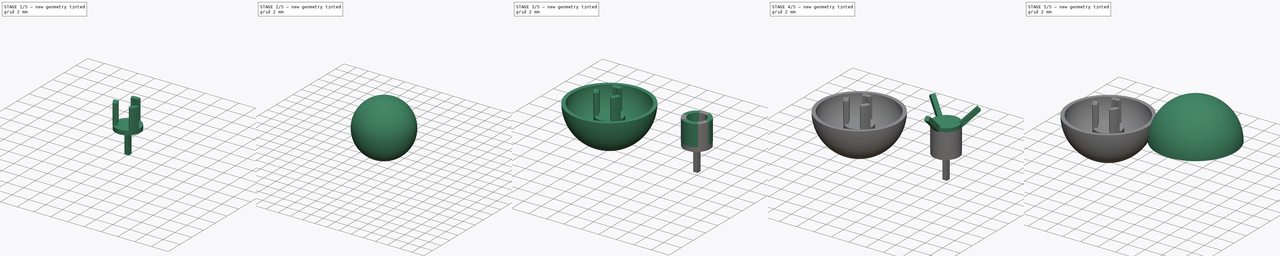
[diagram: build sequence overview — one tinted view per stage of 5, left to right]
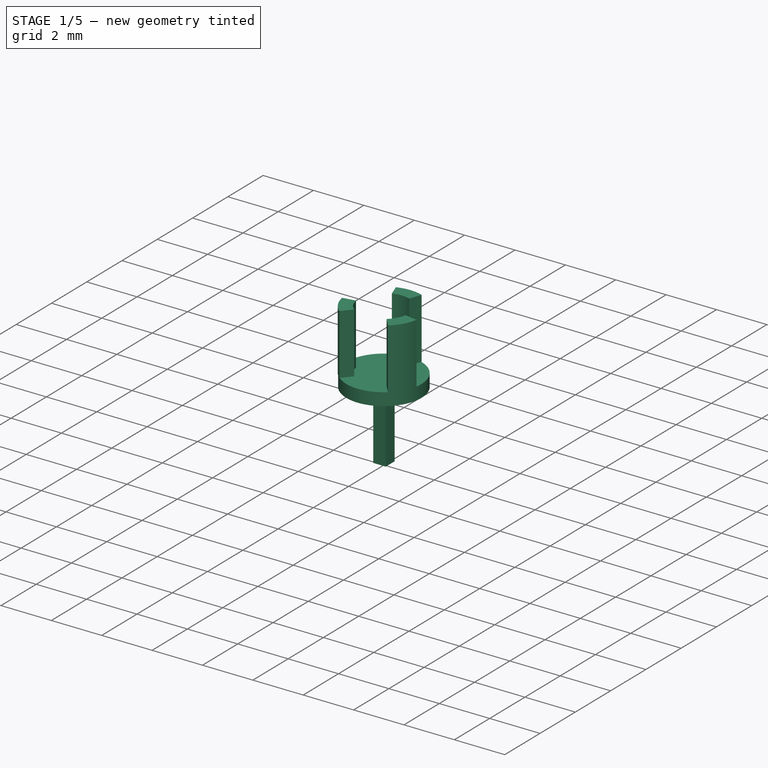
[diagram: stage 1 of 5 — iso view after this stage's code; geometry added in this stage tinted green]
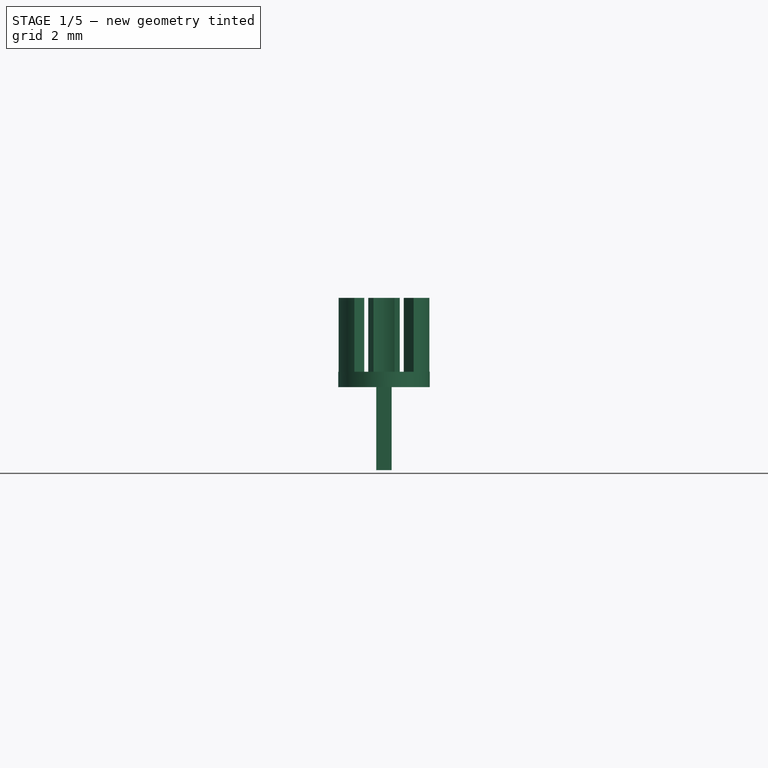
[diagram: stage 1 of 5 — front view after this stage's code; geometry added in this stage tinted green]
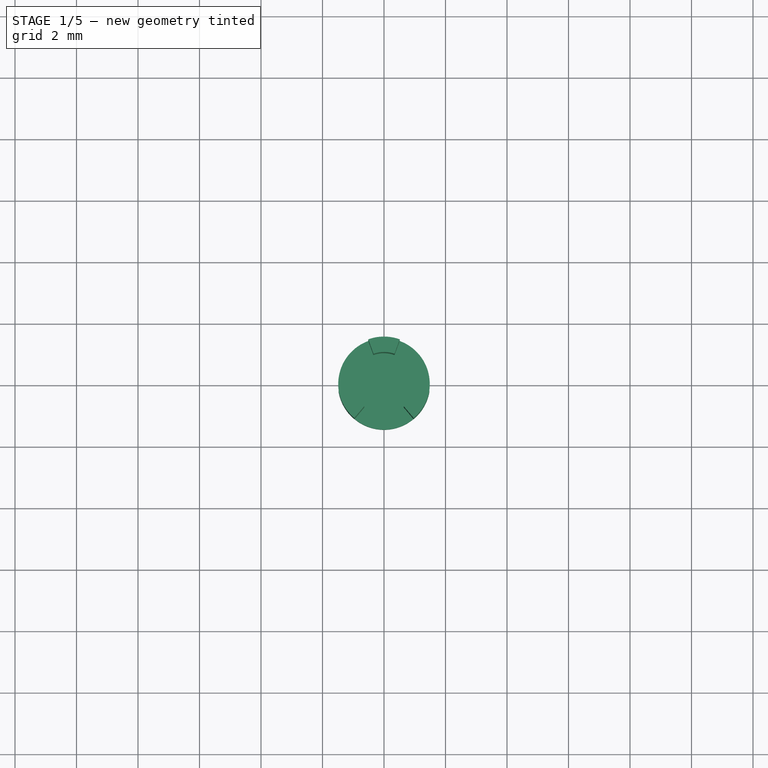
[diagram: stage 1 of 5 — top view after this stage's code; geometry added in this stage tinted green]
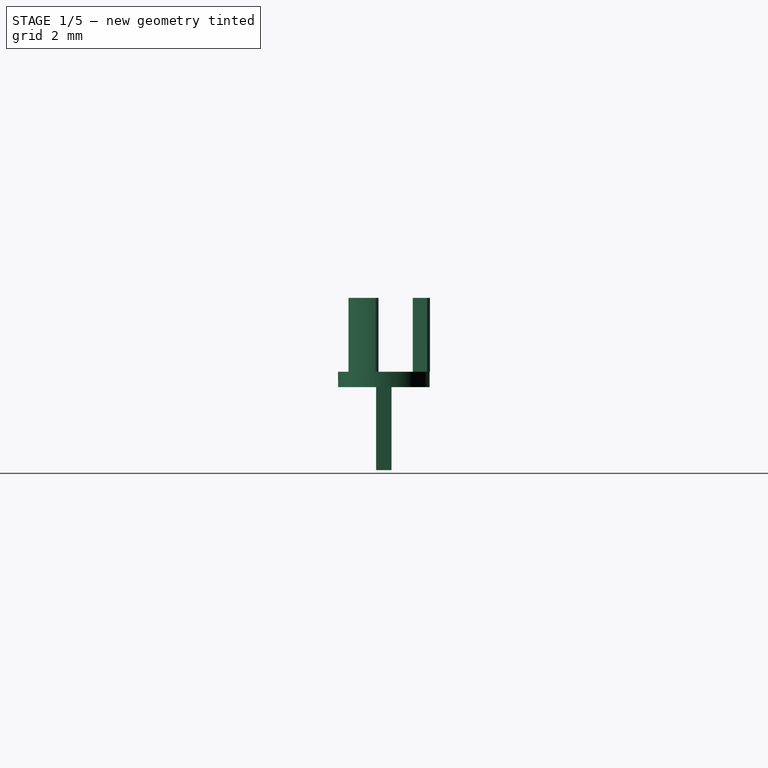
[diagram: stage 1 of 5 — right view after this stage's code; geometry added in this stage tinted green]
FCSTD DOCUMENT  (FreeCAD 0.19R24344 (Git))
Label: Sphere-10mm
Comment: First attempt for 10mm Spheres with Magnets inside.
License: Creative Commons Attribution-NonCommercial-ShareAlike
LicenseURL: http://creativecommons.org/licenses/by-nc-sa/4.0/
objects: Sketcher::SketchObject×14, PartDesign::Pad×10, PartDesign::Body×3, Part::FeaturePython×3, PartDesign::ShapeBinder×3, PartDesign::Pocket×3, Part::Sphere×2, Part::MultiFuse×2, Part::Cut×1, Part::Feature×1, App::DocumentObjectGroup×1
note: 55 computed .brp shape members not serialized (recipe doc carries the construction recipe); baked Part::Feature solids carry a one-line shape summary decoded from their .brp

FEATURE [PartDesign::Body] Body001
  Group = -> [Sketch001,Pad,Sketch002,Pad001,Sketch003,Pad002,CopyRuled_Surface,Sketch004,Pad003,CopyRuled_Surface001,Sketch005,Pad004,CopyRuled_Surface002,Sketch006,Pad005,Sketch007,Pad006,Sketch008,Pocket,Sketch016,Pocket001]
  Origin = -> Origin001
  Tip = -> Pocket001
FEATURE [Sketcher::SketchObject] Sketch009
  FullyConstrained = true
  MapMode = 5
  Support = -> [XY_Plane002]
  sketch-geometry (2):
    g0: Circle CenterX=0 CenterY=0 CenterZ=0 NormalX=0 NormalY=0 NormalZ=1 AngleXU=0 Radius=1
    g1: Circle CenterX=0 CenterY=0 CenterZ=0 NormalX=0 NormalY=0 NormalZ=1 AngleXU=0 Radius=1.5
  constraints (4):
    c: Coincident(g0,g-1)
    c: Coincident(g1,g0)
    c: Diameter(g0) = 2
    c: Diameter(g1) = 3
FEATURE [PartDesign::Pad] Pad008
  Direction = (1,1,1)
  Length = 2.4
  Length2 = 100
  Midplane = true
  Profile = -> Sketch009
  Type = 0
FEATURE [Sketcher::SketchObject] Sketch010
  ExternalGeometry = -> [Pad008]
  FullyConstrained = false
  MapMode = 5
  Placement = pos=(0,0,-1.2) rot=(1,0,0;3.14159rad)
  Support = -> [Pad008]
  sketch-geometry (1):
    g0: Circle CenterX=0 CenterY=0 CenterZ=0 NormalX=0 NormalY=0 NormalZ=1 AngleXU=0 Radius=1.48824
  constraints (1):
    c: Tangent(g0,g-3) = -1.5708
FEATURE [PartDesign::Pad] Pad009
  BaseFeature = -> Pad008
  Direction = (1,1,1)
  Length = 0.5
  Length2 = 100
  Profile = -> Sketch010
  Type = 0
FEATURE [Sketcher::SketchObject] Sketch017
  ExternalGeometry = -> [Pad009]
  FullyConstrained = true
  MapMode = 5
  Placement = pos=(0,0,0) rot=(0.57735,0.57735,0.57735;2.0944rad)
  Support = -> [YZ_Plane002]
  sketch-geometry (4):
    g0: LineSegment StartX=-0.25 StartY=-1.7 StartZ=0 EndX=0.25 EndY=-1.7 EndZ=0
    g1: LineSegment StartX=0.25 StartY=-1.7 StartZ=0 EndX=0.25 EndY=-4.4 EndZ=0
    g2: LineSegment StartX=0.25 StartY=-4.4 StartZ=0 EndX=-0.25 EndY=-4.4 EndZ=0
    g3: LineSegment StartX=-0.25 StartY=-4.4 StartZ=0 EndX=-0.25 EndY=-1.7 EndZ=0
  constraints (11):
    c: Coincident(g0,g1)
    c: Coincident(g1,g2)
    c: Coincident(g2,g3)
    c: Coincident(g3,g0)
    c: Horizontal(g0)
    c: Vertical(g1)
    c: Vertical(g3)
    c: PointOnObject(g0,g-3)
    c: DistanceY(g2,g-1) = 4.4
    c: Distance(g2) = 0.5
    c: Symmetric(g1,g2,g-2)
FEATURE [PartDesign::Pad] Pad007
  BaseFeature = -> Pad009
  Direction = (1,1,1)
  Length = 0.5
  Length2 = 100
  Midplane = true
  Profile = -> Sketch017
  Type = 0
FEATURE [Sketcher::SketchObject] Sketch015
  FullyConstrained = true
  MapMode = 5
  Placement = pos=(0,0,-1.2) rot=(0,0,1;0rad)
  Support = -> [Pad009]
  sketch-geometry (12):
    g0: LineSegment StartX=0 StartY=0 StartZ=0 EndX=2.95442 EndY=-0.520945 EndZ=0
    g1: LineSegment StartX=2.95442 StartY=-0.520945 StartZ=0 EndX=1.02606 EndY=2.81908 EndZ=0
    g2: LineSegment StartX=1.02606 StartY=2.81908 StartZ=0 EndX=0 EndY=0 EndZ=0
    g3: LineSegment StartX=0 StartY=0 StartZ=0 EndX=9e-16 EndY=-4 EndZ=0
    g4: LineSegment StartX=0 StartY=0 StartZ=0 EndX=-3.4641 EndY=2 EndZ=0
    g5: LineSegment StartX=0 StartY=0 StartZ=0 EndX=-1.02606 EndY=2.81908 EndZ=0
    g6: LineSegment StartX=-1.02606 StartY=2.81908 StartZ=0 EndX=-2.95442 EndY=-0.520945 EndZ=0
    g7: LineSegment StartX=-2.95442 StartY=-0.520945 StartZ=0 EndX=0 EndY=0 EndZ=0
    g8: LineSegment StartX=0 StartY=0 StartZ=0 EndX=-1.92836 EndY=-2.29813 EndZ=0
    g9: LineSegment StartX=-1.92836 StartY=-2.29813 StartZ=0 EndX=1.92836 EndY=-2.29813 EndZ=0
    g10: LineSegment StartX=1.92836 StartY=-2.29813 StartZ=0 EndX=0 EndY=0 EndZ=0
    g11: LineSegment StartX=0 StartY=0 StartZ=0 EndX=3.4641 EndY=2 EndZ=0
  constraints (33):
    c: Coincident(g0,g1)
    c: Coincident(g1,g2)
    c: Coincident(g2,g0)
    c: Equal(g0,g2)
    c: Coincident(g2,g-1)
    c: Distance(g0,g0) = 3
    c: Coincident(g3,g0)
    c: Coincident(g4,g0)
    c: Angle(g-2,g4) = 1.0472
    c: Angle(g3,g-2) = 3.14159
    c: Distance(g4,g0) = 4
    c: Distance(g0,g3) = 4
    c: Coincident(g5,g6)
    c: Coincident(g6,g7)
    c: Coincident(g7,g5)
    c: Equal(g5,g7)
    c: Coincident(g7,g0)
    c: Coincident(g8,g9)
    c: Coincident(g9,g10)
    c: Coincident(g10,g8)
    c: Equal(g8,g10)
    c: Coincident(g10,g0)
    c: Distance(g9,g0) = 3
    c: Distance(g5,g0) = 3
    c: Coincident(g11,g0)
    c: Distance(g11,g0) = 4
    c: Angle(g11,g-2) = 1.0472
    c: Angle(g0,g2) = 1.39626
    c: Angle(g5,g7) = 1.39626
    c: Angle(g8,g10) = 1.39626
    c: Angle(g8,g3) = 0.698132
    c: Angle(g0,g11) = 0.698132
    c: Angle(g5,g4) = 0.698132
FEATURE [PartDesign::Pocket] Pocket002
  BaseFeature = -> Pad007
  Length = 5
  Length2 = 100
  Profile = -> Sketch015
  Reversed = true
  Type = 0
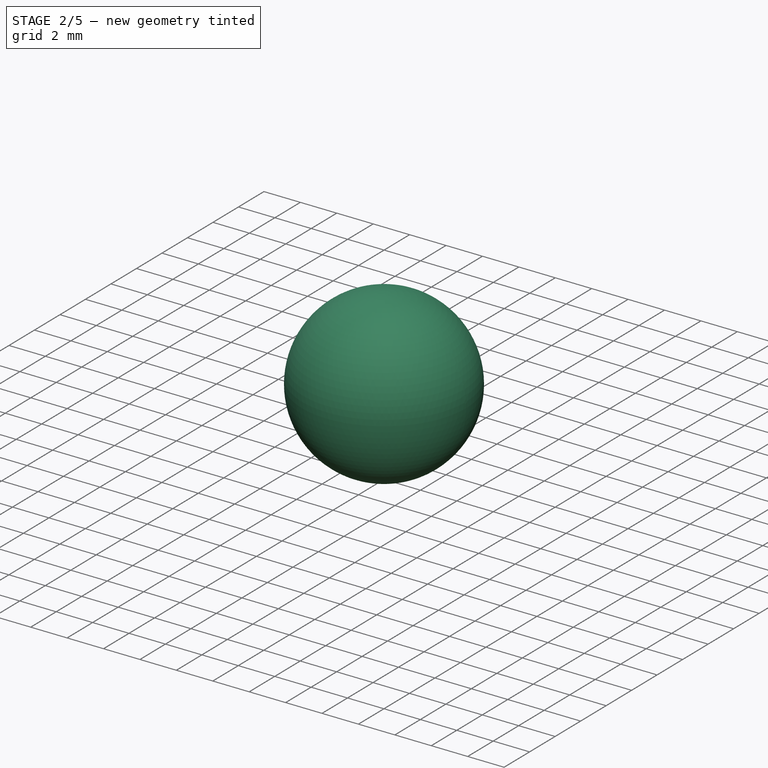
[diagram: stage 2 of 5 — iso view after this stage's code; geometry added in this stage tinted green]
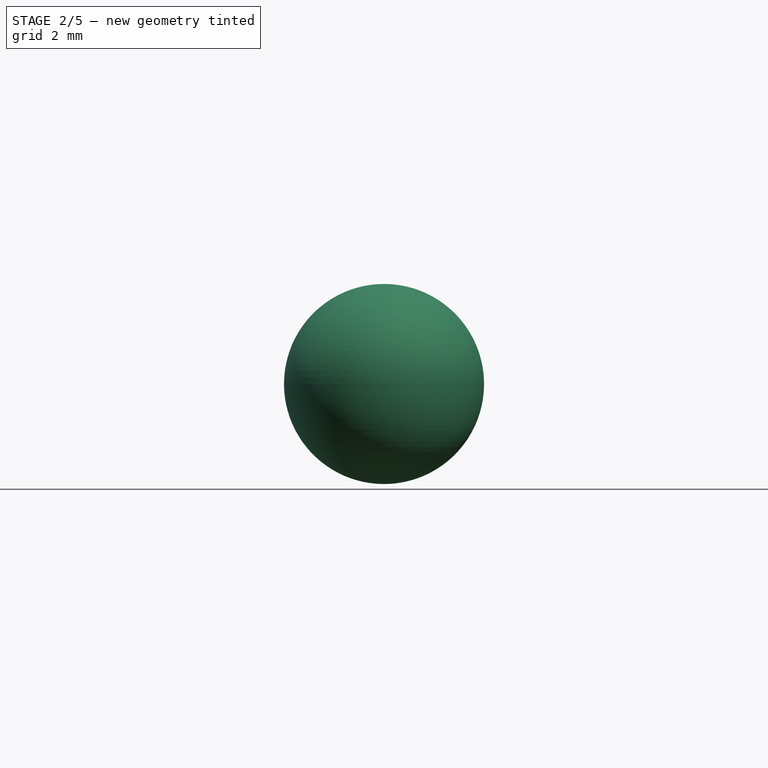
[diagram: stage 2 of 5 — front view after this stage's code; geometry added in this stage tinted green]
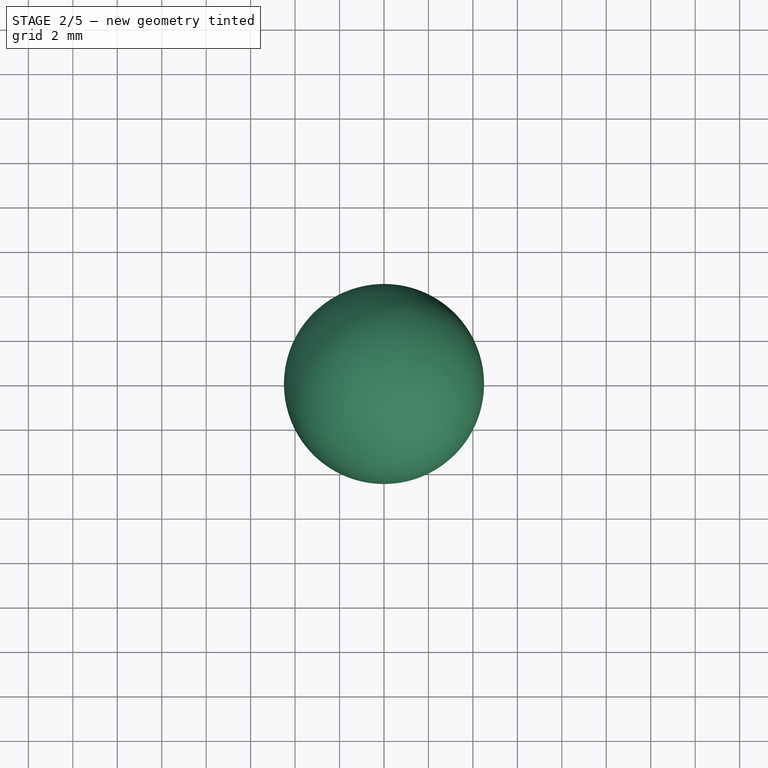
[diagram: stage 2 of 5 — top view after this stage's code; geometry added in this stage tinted green]
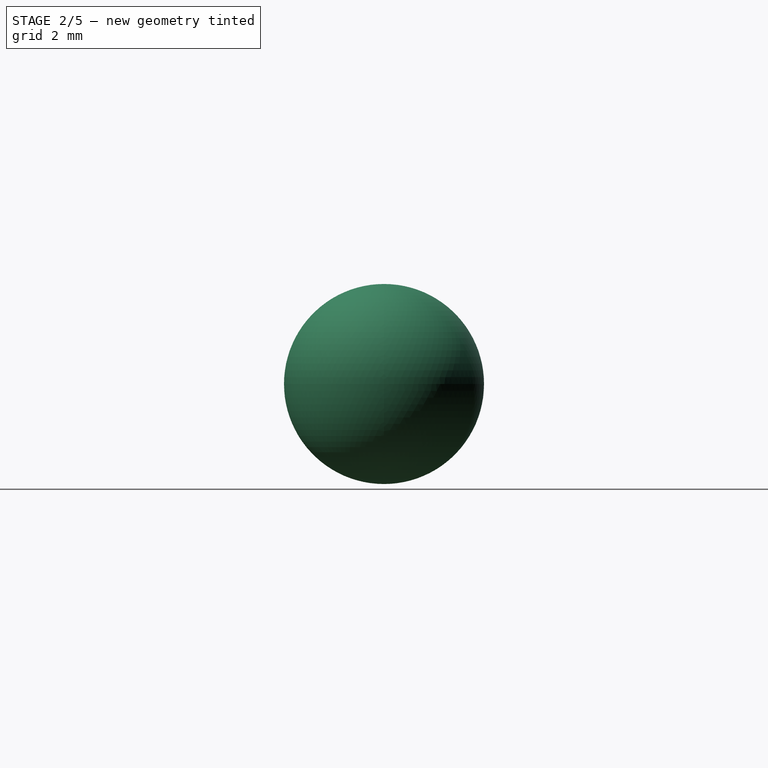
[diagram: stage 2 of 5 — right view after this stage's code; geometry added in this stage tinted green]
FEATURE [Sketcher::SketchObject] Sketch
  FullyConstrained = true
  MapMode = 5
  Support = -> [XY_Plane]
FEATURE [PartDesign::Body] Body
  Group = -> [Sketch]
  Origin = -> Origin
FEATURE [Part::Sphere] Sphere
  Angle1 = -90
  Angle2 = 90
  Angle3 = 360
  AttacherType = Attacher::AttachEngine3D
  Radius = 4.5
FEATURE [Part::Sphere] Sphere001
  Angle1 = -90
  Angle2 = 90
  Angle3 = 360
  AttacherType = Attacher::AttachEngine3D
  Radius = 4.1
FEATURE [Part::Cut] Cut
  Base = -> Sphere
  Tool = -> Sphere001
FEATURE [Part::Feature] Face
  shape: bbox 10.2 x 10.09 x 2e-07 mm, 1 faces, 0 solids (baked)
FEATURE [Part::FeaturePython] Slice  # WARN: FeaturePython — macro-defined, semantics opaque (R4)
  Base = -> Cut
  Mode = 1
  Tolerance = 0
  Tools = -> [Face]
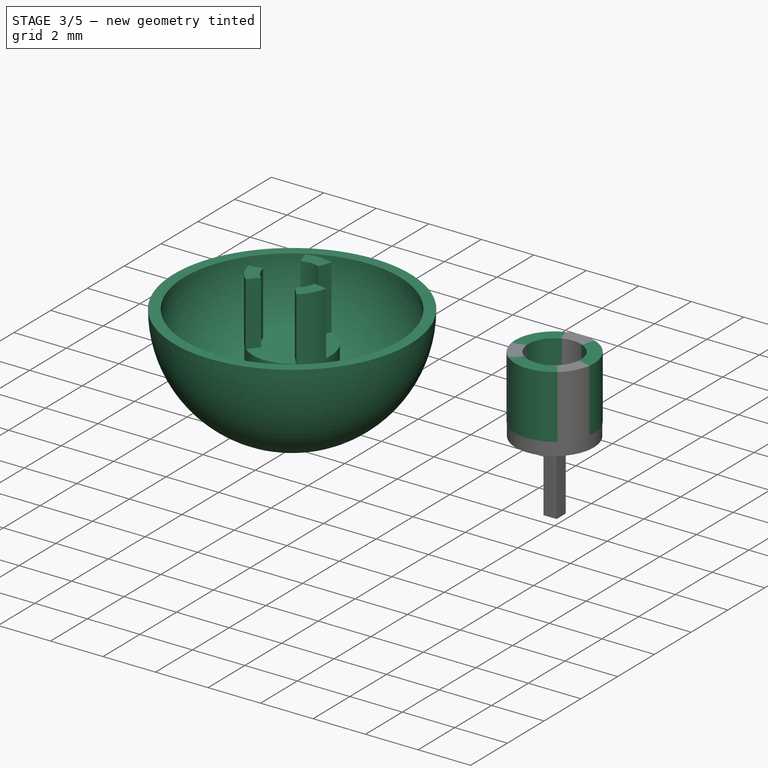
[diagram: stage 3 of 5 — iso view after this stage's code; geometry added in this stage tinted green]
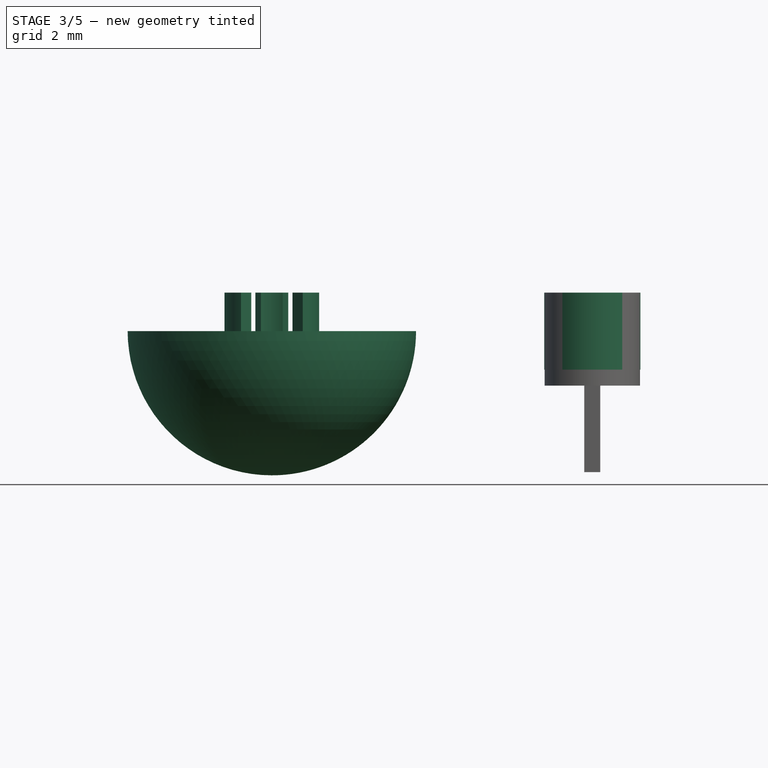
[diagram: stage 3 of 5 — front view after this stage's code; geometry added in this stage tinted green]
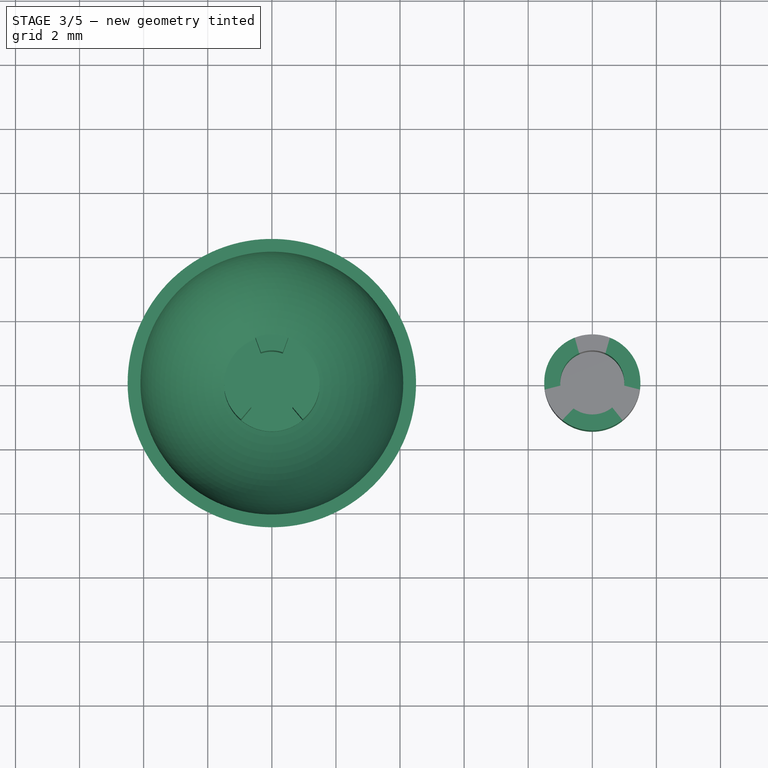
[diagram: stage 3 of 5 — top view after this stage's code; geometry added in this stage tinted green]
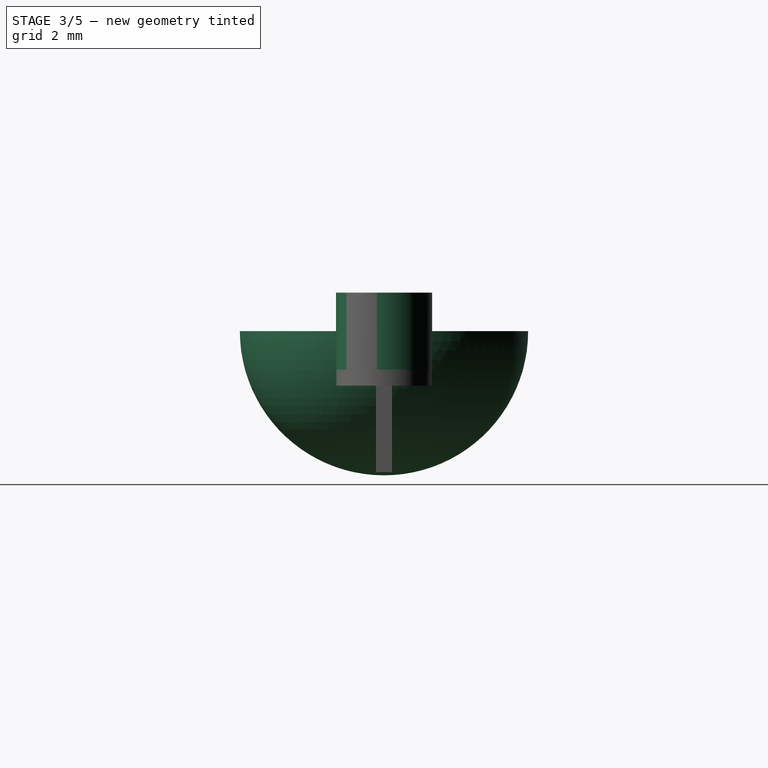
[diagram: stage 3 of 5 — right view after this stage's code; geometry added in this stage tinted green]
FEATURE [Part::FeaturePython] Slice_child1  label="Slice.1"  # WARN: FeaturePython — macro-defined, semantics opaque (R4)
  Base = -> Slice
  FilterType = 1
  Invert = false
  OverrideMaxVal = 0
  Placement = pos=(-10,0,0) rot=(0,0,1;0rad)
  WindowFrom = 80
  WindowTo = 100
  items = 1
FEATURE [Sketcher::SketchObject] Sketch001
  FullyConstrained = true
  MapMode = 5
  Support = -> [XY_Plane001]
  sketch-geometry (2):
    g0: Circle CenterX=0 CenterY=0 CenterZ=0 NormalX=0 NormalY=0 NormalZ=1 AngleXU=0 Radius=1
    g1: Circle CenterX=0 CenterY=0 CenterZ=0 NormalX=0 NormalY=0 NormalZ=1 AngleXU=0 Radius=1.5
  constraints (4):
    c: Coincident(g0,g-1)
    c: Coincident(g1,g0)
    c: Diameter(g0) = 2
    c: Diameter(g1) = 3
FEATURE [PartDesign::Pad] Pad
  Direction = (1,1,1)
  Length = 2.4
  Length2 = 100
  Midplane = true
  Profile = -> Sketch001
  Type = 0
FEATURE [Sketcher::SketchObject] Sketch002
  ExternalGeometry = -> [Pad]
  FullyConstrained = false
  MapMode = 5
  Placement = pos=(0,0,-1.2) rot=(1,0,0;3.14159rad)
  Support = -> [Pad]
  sketch-geometry (1):
    g0: Circle CenterX=0 CenterY=0 CenterZ=0 NormalX=0 NormalY=0 NormalZ=1 AngleXU=0 Radius=1.48824
  constraints (1):
    c: Tangent(g0,g-3) = -1.5708
FEATURE [PartDesign::Pad] Pad001
  BaseFeature = -> Pad
  Direction = (1,1,1)
  Length = 0.5
  Length2 = 100
  Profile = -> Sketch002
  Type = 0
FEATURE [Sketcher::SketchObject] Sketch003
  ExternalGeometry = -> [Pad001]
  FullyConstrained = true
  MapMode = 5
  Placement = pos=(0,0,0) rot=(0.57735,0.57735,0.57735;2.0944rad)
  Support = -> [YZ_Plane001]
  sketch-geometry (4):
    g0: LineSegment StartX=-0.25 StartY=-1.7 StartZ=0 EndX=0.25 EndY=-1.7 EndZ=0
    g1: LineSegment StartX=0.25 StartY=-1.7 StartZ=0 EndX=0.25 EndY=-4.4 EndZ=0
    g2: LineSegment StartX=0.25 StartY=-4.4 StartZ=0 EndX=-0.25 EndY=-4.4 EndZ=0
    g3: LineSegment StartX=-0.25 StartY=-4.4 StartZ=0 EndX=-0.25 EndY=-1.7 EndZ=0
  constraints (11):
    c: Coincident(g0,g1)
    c: Coincident(g1,g2)
    c: Coincident(g2,g3)
    c: Coincident(g3,g0)
    c: Horizontal(g0)
    c: Vertical(g1)
    c: Vertical(g3)
    c: PointOnObject(g0,g-3)
    c: DistanceY(g2,g-1) = 4.4
    c: Distance(g2) = 0.5
    c: Symmetric(g1,g2,g-2)
FEATURE [PartDesign::Pad] Pad002
  BaseFeature = -> Pad001
  Direction = (1,1,1)
  Length = 0.5
  Length2 = 100
  Midplane = true
  Profile = -> Sketch003
  Type = 0
FEATURE [Part::MultiFuse] Fusion001  label="Bottom"
  Shapes = -> [Slice_child1,Body002]
FEATURE [App::DocumentObjectGroup] GrExplode_Slice  label="Exploded Slice"
  Group = -> [Fusion,Fusion001]
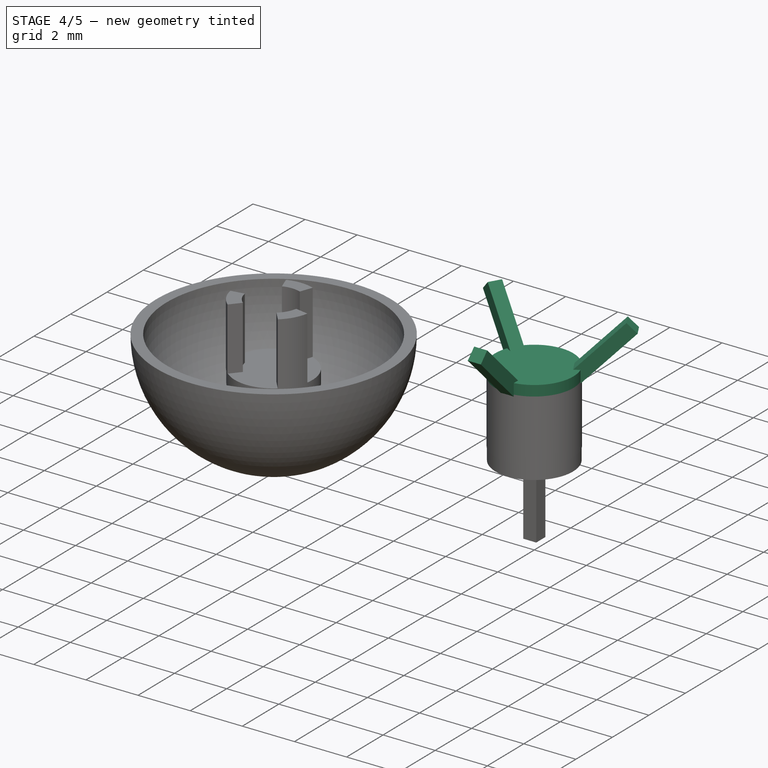
[diagram: stage 4 of 5 — iso view after this stage's code; geometry added in this stage tinted green]
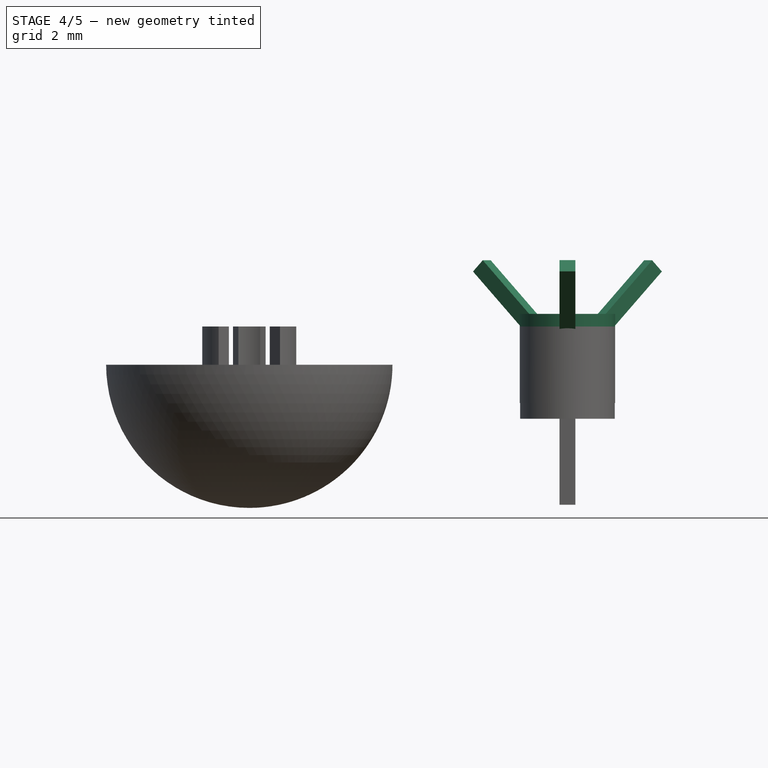
[diagram: stage 4 of 5 — front view after this stage's code; geometry added in this stage tinted green]
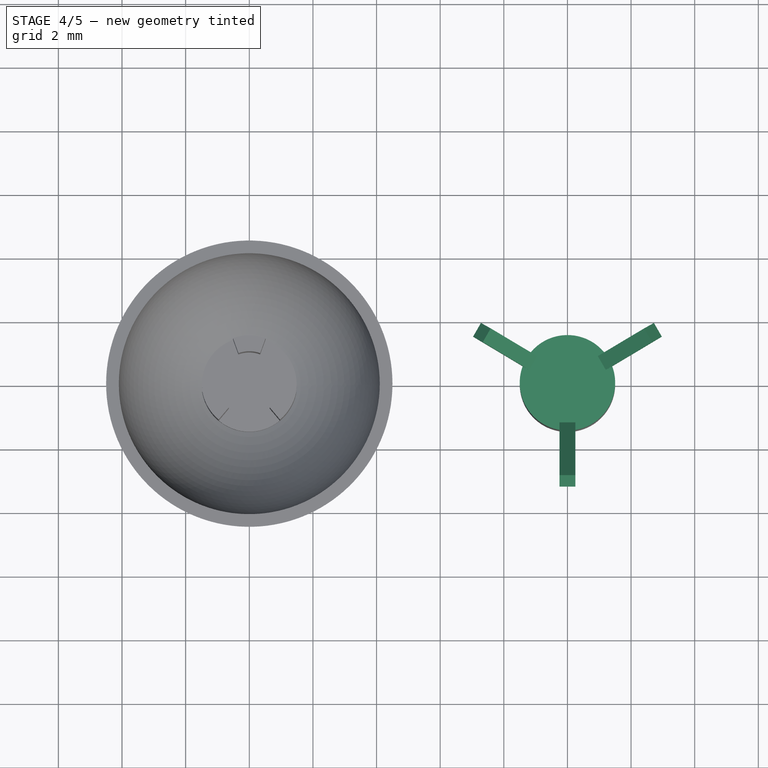
[diagram: stage 4 of 5 — top view after this stage's code; geometry added in this stage tinted green]
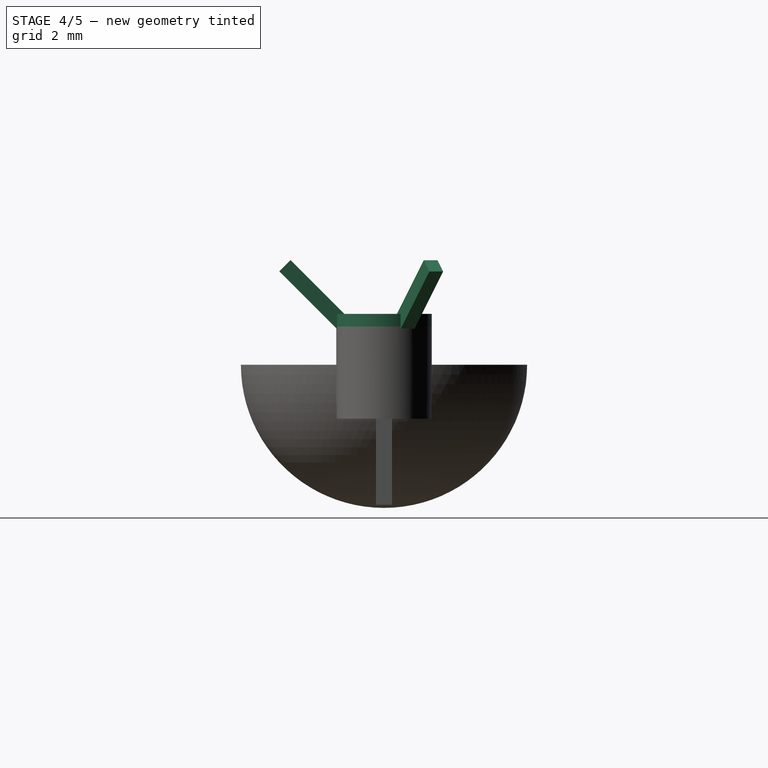
[diagram: stage 4 of 5 — right view after this stage's code; geometry added in this stage tinted green]
FEATURE [PartDesign::ShapeBinder] CopyRuled_Surface
  TraceSupport = false
FEATURE [Sketcher::SketchObject] Sketch004
  FullyConstrained = true
  MapMode = 5
  Placement = pos=(0,0,0) rot=(-1,0,0;0.785398rad)
  Support = -> [CopyRuled_Surface]
  sketch-geometry (4):
    g0: LineSegment StartX=-0.25 StartY=-1.4 StartZ=0 EndX=0.25 EndY=-1.4 EndZ=0
    g1: LineSegment StartX=0.25 StartY=-1.4 StartZ=0 EndX=0.25 EndY=-4.4 EndZ=0
    g2: LineSegment StartX=0.25 StartY=-4.4 StartZ=0 EndX=-0.25 EndY=-4.4 EndZ=0
    g3: LineSegment StartX=-0.25 StartY=-4.4 StartZ=0 EndX=-0.25 EndY=-1.4 EndZ=0
  constraints (11):
    c: Coincident(g0,g1)
    c: Coincident(g1,g2)
    c: Coincident(g2,g3)
    c: Coincident(g3,g0)
    c: Horizontal(g0)
    c: Vertical(g1)
    c: Vertical(g3)
    c: Distance(g2) = 0.5
    c: Symmetric(g2,g1,g-2)
    c: DistanceY(g1,g-1) = 4.4
    c: DistanceY(g0,g-1) = 1.4
FEATURE [PartDesign::Pad] Pad003
  BaseFeature = -> Pad002
  Direction = (1,1,1)
  Length = 0.5
  Length2 = 100
  Midplane = true
  Profile = -> Sketch004
  Type = 0
FEATURE [PartDesign::ShapeBinder] CopyRuled_Surface001
  TraceSupport = false
FEATURE [Sketcher::SketchObject] Sketch005
  ExternalGeometry = -> [CopyRuled_Surface001]
  FullyConstrained = true
  MapMode = 5
  Placement = pos=(-3.87613e-09,-2.23788e-09,4.47576e-09) rot=(0.943446,-0.076169,0.322657;3.57987rad)
  Support = -> [CopyRuled_Surface001]
  sketch-geometry (4):
    g0: LineSegment StartX=1.22512 StartY=-0.677557 StartZ=0 EndX=3.56083 EndY=-2.58466 EndZ=0
    g1: LineSegment StartX=3.56083 StartY=-2.58466 StartZ=0 EndX=3.24461 EndY=-2.97196 EndZ=0
    g2: LineSegment StartX=3.24461 StartY=-2.97196 StartZ=0 EndX=0.908891 EndY=-1.06486 EndZ=0
    g3: LineSegment StartX=0.908891 StartY=-1.06486 StartZ=0 EndX=1.22512 EndY=-0.677557 EndZ=0
  constraints (12):
    c: Coincident(g0,g1)
    c: Coincident(g1,g2)
    c: Coincident(g2,g3)
    c: Coincident(g3,g0)
    c: Distance(g-1,g0) = 1.4
    c: Distance(g3) = 0.5
    c: Distance(g-1,g2) = 1.4
    c: Distance(g-1,g1) = 4.4
    c: Parallel(g1,g3)
    c: Parallel(g0,g2)
    c: Perpendicular(g0,g3)
    c: Parallel(g-3,g2)
FEATURE [PartDesign::Pad] Pad004
  BaseFeature = -> Pad003
  Direction = (1,1,1)
  Length = 0.5
  Length2 = 100
  Midplane = true
  Profile = -> Sketch005
  Type = 0
FEATURE [PartDesign::ShapeBinder] CopyRuled_Surface002
  TraceSupport = false
FEATURE [Sketcher::SketchObject] Sketch006
  ExternalGeometry = -> [CopyRuled_Surface002]
  FullyConstrained = true
  MapMode = 5
  Placement = pos=(-1.77651e-08,1.02567e-08,-2.05134e-08) rot=(0.557644,0.807875,0.190713;0.800913rad)
  Support = -> [CopyRuled_Surface002]
  sketch-geometry (4):
    g0: LineSegment StartX=-1.22512 StartY=0.677557 StartZ=0 EndX=-3.56083 EndY=2.58466 EndZ=0
    g1: LineSegment StartX=-3.56083 StartY=2.58466 StartZ=0 EndX=-3.24461 EndY=2.97196 EndZ=0
    g2: LineSegment StartX=-3.24461 StartY=2.97196 StartZ=0 EndX=-0.908891 EndY=1.06486 EndZ=0
    g3: LineSegment StartX=-0.908891 StartY=1.06486 StartZ=0 EndX=-1.22512 EndY=0.677557 EndZ=0
  constraints (12):
    c: Coincident(g0,g1)
    c: Coincident(g1,g2)
    c: Coincident(g2,g3)
    c: Coincident(g3,g0)
    c: Distance(g-1,g0) = 1.4
    c: Distance(g3) = 0.5
    c: Distance(g-1,g2) = 1.4
    c: Distance(g1) = 0.5
    c: Parallel(g1,g3)
    c: Distance(g-1,g0) = 4.4
    c: Perpendicular(g0,g3)
    c: Parallel(g-3,g0)
FEATURE [PartDesign::Pad] Pad005
  BaseFeature = -> Pad004
  Direction = (1,1,1)
  Length = 0.5
  Length2 = 100
  Midplane = true
  Profile = -> Sketch006
  Type = 0
FEATURE [Sketcher::SketchObject] Sketch007
  FullyConstrained = true
  MapMode = 5
  Placement = pos=(0,0,1.2) rot=(0,0,1;0rad)
  Support = -> [Pad005]
  sketch-geometry (1):
    g0: Circle CenterX=0 CenterY=0 CenterZ=0 NormalX=0 NormalY=0 NormalZ=1 AngleXU=0 Radius=1.5
  constraints (2):
    c: Coincident(g0,g-1)
    c: Radius(g0) = 1.5
FEATURE [PartDesign::Pad] Pad006
  BaseFeature = -> Pad005
  Direction = (1,1,1)
  Length = 0.4
  Length2 = 100
  Profile = -> Sketch007
  Type = 0
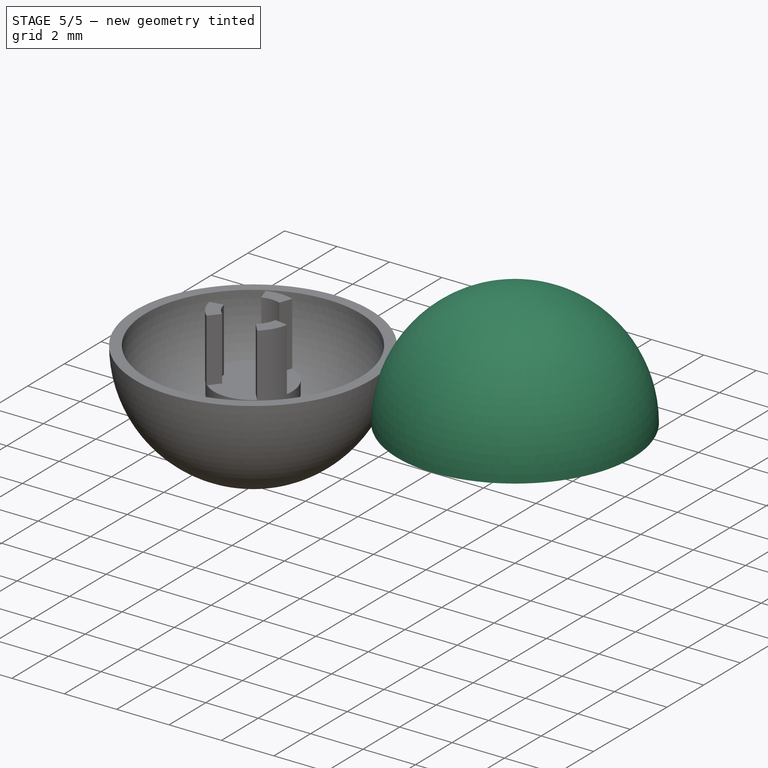
[diagram: stage 5 of 5 — iso view after this stage's code; geometry added in this stage tinted green]
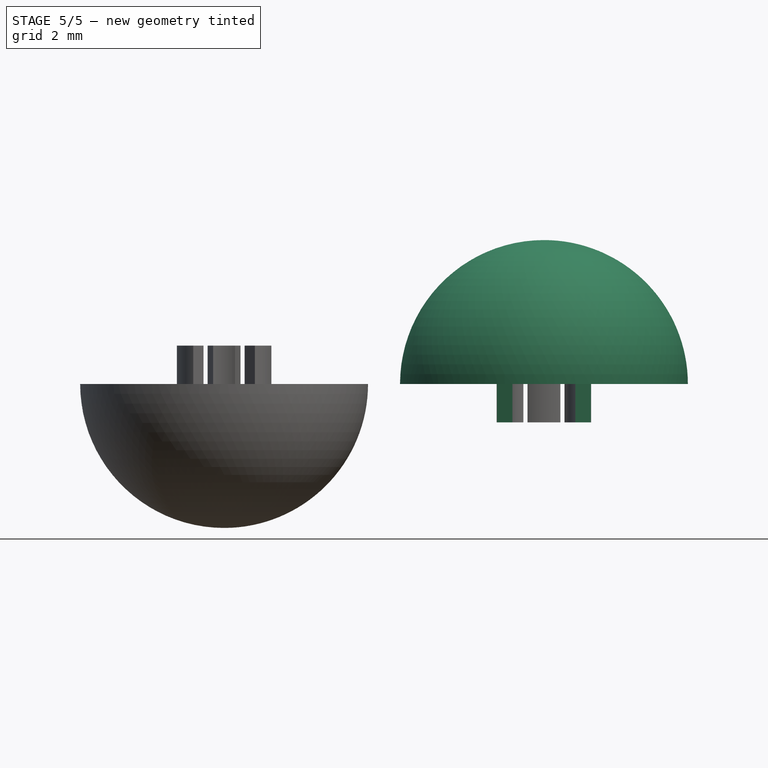
[diagram: stage 5 of 5 — front view after this stage's code; geometry added in this stage tinted green]
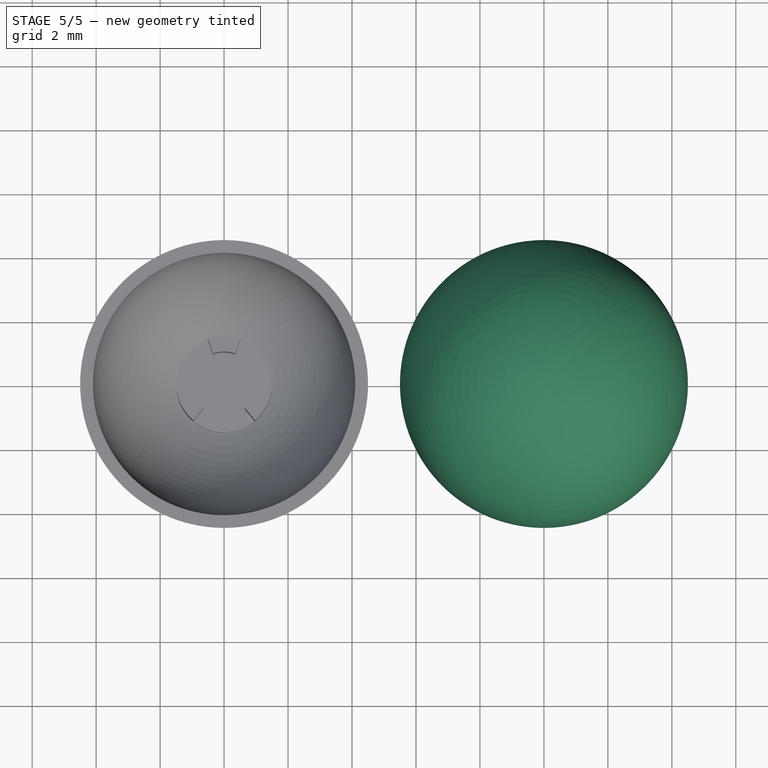
[diagram: stage 5 of 5 — top view after this stage's code; geometry added in this stage tinted green]
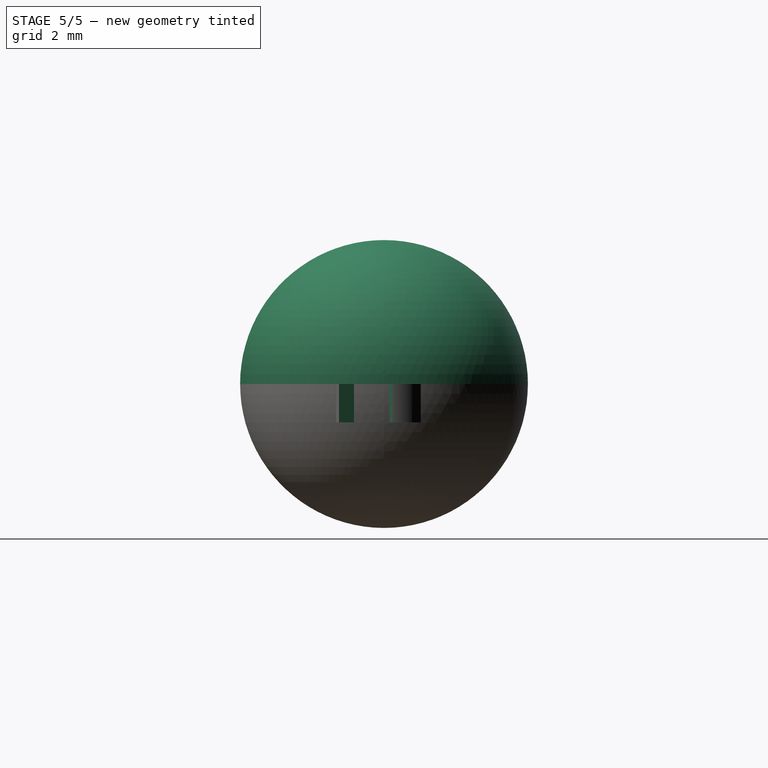
[diagram: stage 5 of 5 — right view after this stage's code; geometry added in this stage tinted green]
FEATURE [Part::FeaturePython] Slice_child0  label="Slice.0"  # WARN: FeaturePython — macro-defined, semantics opaque (R4)
  Base = -> Slice
  FilterType = 1
  Invert = false
  OverrideMaxVal = 0
  WindowFrom = 80
  WindowTo = 100
  items = 0
FEATURE [Sketcher::SketchObject] Sketch008
  FullyConstrained = true
  MapMode = 5
  Placement = pos=(0,0,1.2) rot=(0,0,1;0rad)
  Support = -> [Pad002]
  sketch-geometry (11):
    g0: LineSegment StartX=0 StartY=0 StartZ=0 EndX=1.92836 EndY=2.29813 EndZ=0
    g1: LineSegment StartX=1.92836 StartY=2.29813 StartZ=0 EndX=-1.92836 EndY=2.29813 EndZ=0
    g2: LineSegment StartX=-1.92836 StartY=2.29813 StartZ=0 EndX=0 EndY=0 EndZ=0
    g3: LineSegment StartX=0 StartY=0 StartZ=0 EndX=3.4641 EndY=-2 EndZ=0
    g4: LineSegment StartX=0 StartY=0 StartZ=0 EndX=-3.4641 EndY=-2 EndZ=0
    g5: LineSegment StartX=0 StartY=0 StartZ=0 EndX=-2.95442 EndY=0.520945 EndZ=0
    g6: LineSegment StartX=-2.95442 StartY=0.520945 StartZ=0 EndX=-1.02606 EndY=-2.81908 EndZ=0
    g7: LineSegment StartX=-1.02606 StartY=-2.81908 StartZ=0 EndX=0 EndY=0 EndZ=0
    g8: LineSegment StartX=0 StartY=0 StartZ=0 EndX=1.02606 EndY=-2.81908 EndZ=0
    g9: LineSegment StartX=1.02606 StartY=-2.81908 StartZ=0 EndX=2.95442 EndY=0.520945 EndZ=0
    g10: LineSegment StartX=2.95442 StartY=0.520945 StartZ=0 EndX=0 EndY=0 EndZ=0
  constraints (30):
    c: Coincident(g0,g1)
    c: Coincident(g1,g2)
    c: Coincident(g2,g0)
    c: Equal(g0,g2)
    c: Coincident(g2,g-1)
    c: Distance(g0,g0) = 3
    c: Coincident(g3,g0)
    c: Coincident(g4,g0)
    c: Angle(g-2,g4) = 2.0944
    c: Angle(g3,g-2) = 2.0944
    c: Distance(g4,g0) = 4
    c: Distance(g0,g3) = 4
    c: Coincident(g5,g6)
    c: Coincident(g6,g7)
    c: Coincident(g7,g5)
    c: Equal(g5,g7)
    c: Coincident(g7,g0)
    c: Coincident(g8,g9)
    c: Coincident(g9,g10)
    c: Coincident(g10,g8)
    c: Equal(g8,g10)
    c: Coincident(g10,g0)
    c: Distance(g9,g0) = 3
    c: Distance(g5,g0) = 3
    c: Angle(g8,g10) = 1.39626
    c: Angle(g5,g7) = 1.39626
    c: Angle(g0,g2) = 1.39626
    c: Angle(g-2,g2) = 0.698132
    c: Angle(g5,g4) = 0.698132
    c: Angle(g3,g10) = 0.698132
FEATURE [PartDesign::Pocket] Pocket
  BaseFeature = -> Pad006
  Length = 5
  Length2 = 100
  Profile = -> Sketch008
  Type = 0
FEATURE [Sketcher::SketchObject] Sketch016
  FullyConstrained = true
  MapMode = 5
  Placement = pos=(0,0,-1.2) rot=(0,0,1;0rad)
  Support = -> [Pocket]
  sketch-geometry (1):
    g0: Circle CenterX=0 CenterY=0 CenterZ=0 NormalX=0 NormalY=0 NormalZ=1 AngleXU=0 Radius=2
  constraints (2):
    c: Coincident(g0,g-1)
    c: Radius(g0) = 2
FEATURE [PartDesign::Pocket] Pocket001
  BaseFeature = -> Pocket
  Length = 5
  Length2 = 100
  Profile = -> Sketch016
  Type = 0
FEATURE [PartDesign::Body] Body002
  Group = -> [Sketch009,Pad008,Sketch010,Pad009,Sketch017,Pad007,Sketch015,Pocket002]
  Origin = -> Origin002
  Placement = pos=(-10,0,0) rot=(0,0,1;0rad)
  Tip = -> Pocket002
FEATURE [Part::MultiFuse] Fusion  label="Top"
  Shapes = -> [Slice_child0,Body001]
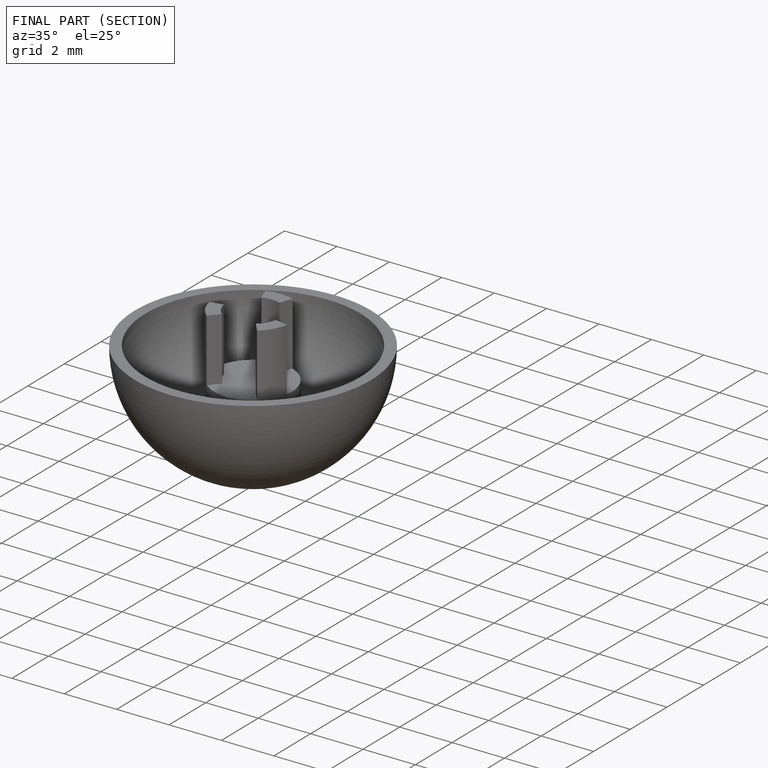
[diagram: finished part — half-section view (interior)]
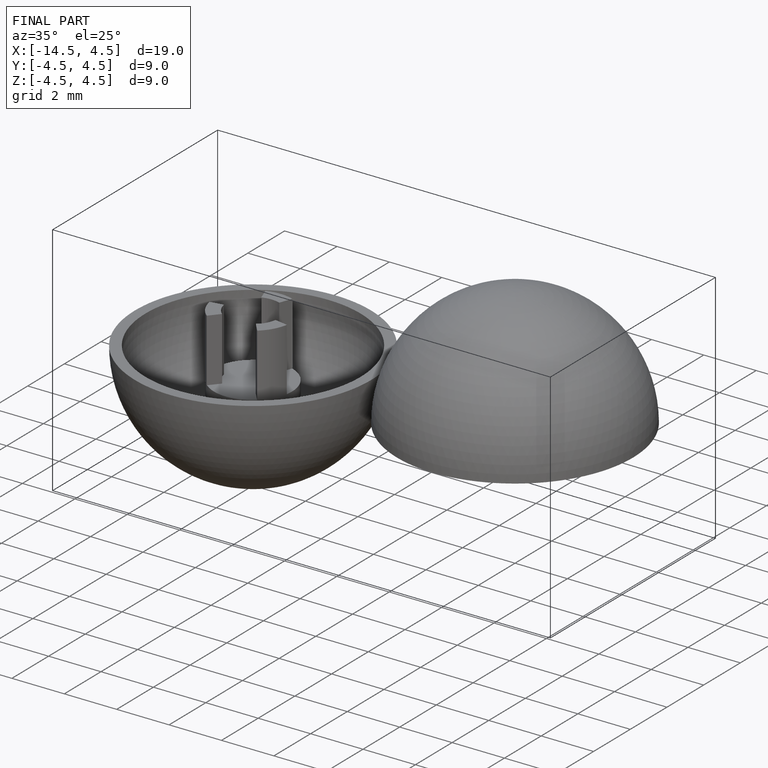
[diagram: finished part — iso view with bounding-box wireframe]
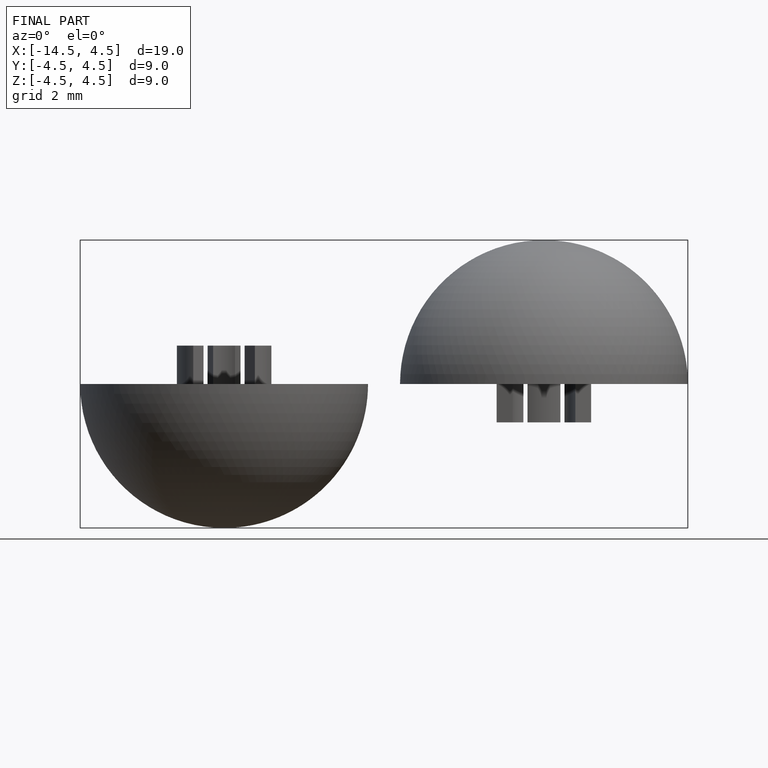
[diagram: finished part — front view with bounding-box wireframe]
